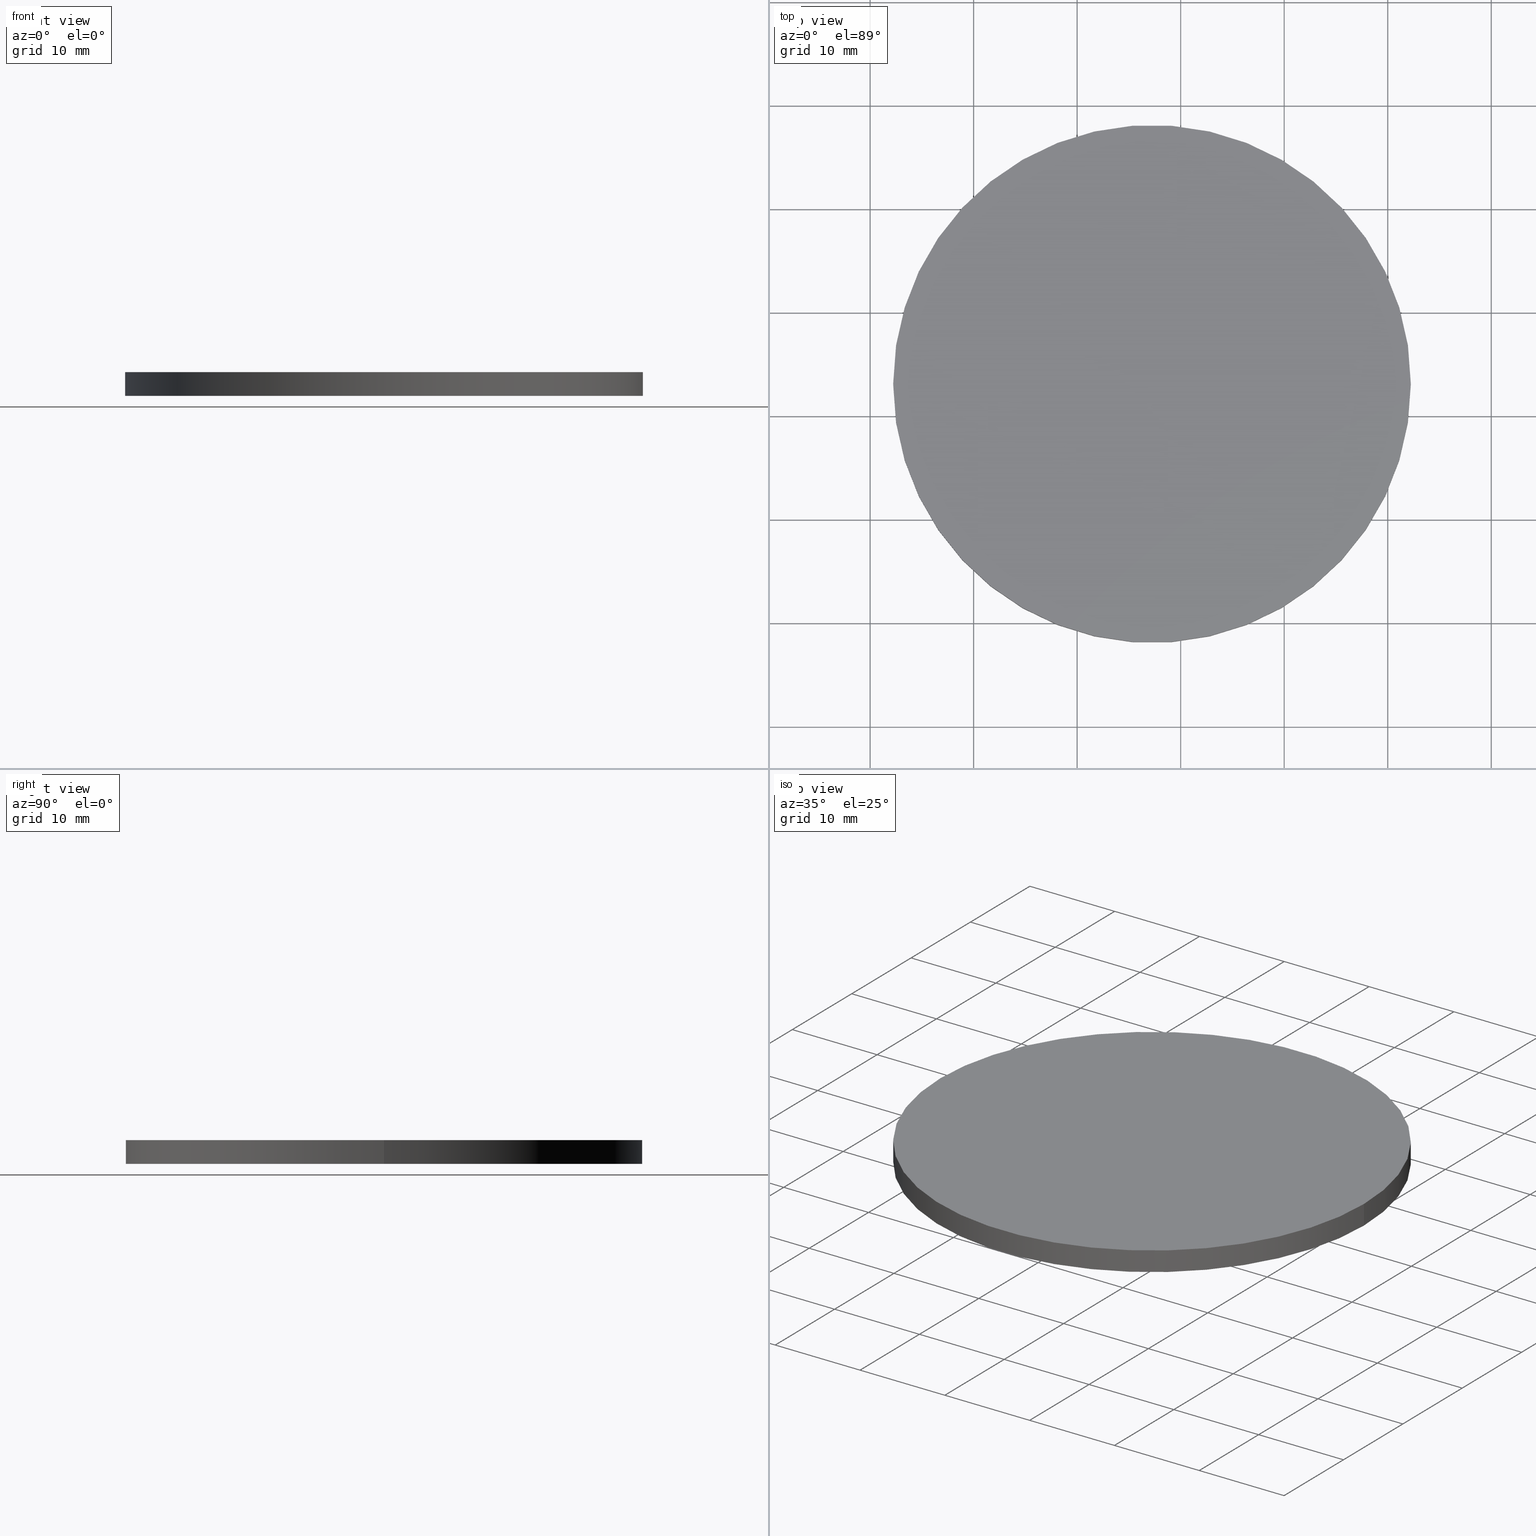
[diagram: canonical four-view strip — front | top / right | iso, engineering-drawing reading convention]
A machine part, canonical four-view strip (front | top / right | iso — engineering-drawing reading convention). The complete STEP part file that produces these views, byte-faithful:
ISO-10303-21;
HEADER;
FILE_DESCRIPTION (( 'STEP AP214' ),
    '1' );
FILE_NAME ('302523.STEP',
    '2019-08-13T06:49:07',
    ( '' ),
    ( '' ),
    'SwSTEP 2.0',
    'SolidWorks 2016',
    '' );
FILE_SCHEMA (( 'AUTOMOTIVE_DESIGN' ));
ENDSEC;

DATA;
#1 = SHAPE_DEFINITION_REPRESENTATION ( #125, #27 ) ;
#2 = ORIENTED_EDGE ( 'NONE', *, *, #131, .T. ) ;
#3 = ORIENTED_EDGE ( 'NONE', *, *, #105, .F. ) ;
#4 = CARTESIAN_POINT ( 'NONE',  ( 192.2299678845674000, 123.1264836690531900, 2.299999999999999800 ) ) ;
#5 = PRODUCT_RELATED_PRODUCT_CATEGORY ( 'part', '', ( #47 ) ) ;
#6 =( NAMED_UNIT ( * ) PLANE_ANGLE_UNIT ( ) SI_UNIT ( $, .RADIAN. ) );
#7 = FILL_AREA_STYLE_COLOUR ( '', #114 ) ;
#8 = DIRECTION ( 'NONE',  ( 0.0000000000000000000, 0.0000000000000000000, 1.000000000000000000 ) ) ;
#9 = AXIS2_PLACEMENT_3D ( 'NONE', #36, #18, #44 ) ;
#10 = FACE_OUTER_BOUND ( 'NONE', #85, .T. ) ;
#11 = ORIENTED_EDGE ( 'NONE', *, *, #105, .T. ) ;
#12 = MECHANICAL_DESIGN_GEOMETRIC_PRESENTATION_REPRESENTATION (  '', ( #97 ), #113 ) ;
#13 = CIRCLE ( 'NONE', #39, 24.99999999999999300 ) ;
#14 = DIRECTION ( 'NONE',  ( 0.0000000000000000000, 0.0000000000000000000, 1.000000000000000000 ) ) ;
#15 = EDGE_CURVE ( 'NONE', #74, #40, #112, .T. ) ;
#16 = DIRECTION ( 'NONE',  ( 1.000000000000000000, 0.0000000000000000000, 0.0000000000000000000 ) ) ;
#17 =( NAMED_UNIT ( * ) PLANE_ANGLE_UNIT ( ) SI_UNIT ( $, .RADIAN. ) );
#18 = DIRECTION ( 'NONE',  ( 0.0000000000000000000, 0.0000000000000000000, 1.000000000000000000 ) ) ;
#19 = SURFACE_STYLE_USAGE ( .BOTH. , #62 ) ;
#20 =( NAMED_UNIT ( * ) SI_UNIT ( $, .STERADIAN. ) SOLID_ANGLE_UNIT ( ) );
#21 = ADVANCED_FACE ( 'NONE', ( #92 ), #132, .T. ) ;
#22 = SURFACE_STYLE_FILL_AREA ( #70 ) ;
#23 = LINE ( 'NONE', #28, #81 ) ;
#24 = FACE_OUTER_BOUND ( 'NONE', #63, .T. ) ;
#25 =( GEOMETRIC_REPRESENTATION_CONTEXT ( 3 ) GLOBAL_UNCERTAINTY_ASSIGNED_CONTEXT ( ( #64 ) ) GLOBAL_UNIT_ASSIGNED_CONTEXT ( ( #58, #17, #20 ) ) REPRESENTATION_CONTEXT ( 'NONE', 'WORKASPACE' ) );
#26 = FACE_OUTER_BOUND ( 'NONE', #83, .T. ) ;
#27 = ADVANCED_BREP_SHAPE_REPRESENTATION ( '302523', ( #77, #75 ), #25 ) ;
#28 = CARTESIAN_POINT ( 'NONE',  ( 192.2299678845674000, 123.1264836690531900, 2.299999999999999800 ) ) ;
#29 = ORIENTED_EDGE ( 'NONE', *, *, #79, .T. ) ;
#30 = CARTESIAN_POINT ( 'NONE',  ( 217.2299678845674000, 123.1264836690531900, 2.299999999999999800 ) ) ;
#31 = CARTESIAN_POINT ( 'NONE',  ( 242.2299678845673700, 123.1264836690531900, 2.299999999999999800 ) ) ;
#32 = FILL_AREA_STYLE ('',( #90 ) ) ;
#33 = VERTEX_POINT ( 'NONE', #4 ) ;
#34 = CARTESIAN_POINT ( 'NONE',  ( 217.2299678845674000, 123.1264836690531900, 0.0000000000000000000 ) ) ;
#35 = APPLICATION_PROTOCOL_DEFINITION ( 'draft international standard', 'automotive_design', 1998, #82 ) ;
#36 = CARTESIAN_POINT ( 'NONE',  ( 217.2299678845674000, 123.1264836690531900, 2.299999999999999800 ) ) ;
#37 = CARTESIAN_POINT ( 'NONE',  ( 217.2299678845674000, 123.1264836690531900, 2.299999999999999800 ) ) ;
#38 = PRODUCT_CONTEXT ( 'NONE', #82, 'mechanical' ) ;
#39 = AXIS2_PLACEMENT_3D ( 'NONE', #120, #73, #59 ) ;
#40 = VERTEX_POINT ( 'NONE', #98 ) ;
#41 = EDGE_CURVE ( 'NONE', #33, #40, #23, .T. ) ;
#42 = DIRECTION ( 'NONE',  ( -1.000000000000000000, 0.0000000000000000000, 0.0000000000000000000 ) ) ;
#43 = CARTESIAN_POINT ( 'NONE',  ( 242.2299678845673700, 123.1264836690531900, 2.299999999999999800 ) ) ;
#44 = DIRECTION ( 'NONE',  ( 1.000000000000000000, 0.0000000000000000000, -0.0000000000000000000 ) ) ;
#45 = UNCERTAINTY_MEASURE_WITH_UNIT (LENGTH_MEASURE( 1.000000000000000100E-005 ), #48, 'distance_accuracy_value', 'NONE');
#46 = PLANE ( 'NONE',  #102 ) ;
#47 = PRODUCT ( '302523', '302523', '', ( #38 ) ) ;
#48 =( LENGTH_UNIT ( ) NAMED_UNIT ( * ) SI_UNIT ( .MILLI., .METRE. ) );
#49 = AXIS2_PLACEMENT_3D ( 'NONE', #37, #119, #93 ) ;
#50 = ADVANCED_FACE ( 'NONE', ( #26 ), #110, .T. ) ;
#51 = MECHANICAL_DESIGN_GEOMETRIC_PRESENTATION_REPRESENTATION (  '', ( #55 ), #60 ) ;
#52 = PRODUCT_DEFINITION_CONTEXT ( 'detailed design', #91, 'design' ) ;
#53 = UNCERTAINTY_MEASURE_WITH_UNIT (LENGTH_MEASURE( 1.000000000000000100E-005 ), #78, 'distance_accuracy_value', 'NONE');
#54 = LINE ( 'NONE', #31, #103 ) ;
#55 = STYLED_ITEM ( 'NONE', ( #96 ), #27 ) ;
#56 = DIRECTION ( 'NONE',  ( -1.000000000000000000, 0.0000000000000000000, 0.0000000000000000000 ) ) ;
#57 = ORIENTED_EDGE ( 'NONE', *, *, #15, .F. ) ;
#58 =( LENGTH_UNIT ( ) NAMED_UNIT ( * ) SI_UNIT ( .MILLI., .METRE. ) );
#59 = DIRECTION ( 'NONE',  ( 1.000000000000000000, 0.0000000000000000000, 0.0000000000000000000 ) ) ;
#60 =( GEOMETRIC_REPRESENTATION_CONTEXT ( 3 ) GLOBAL_UNCERTAINTY_ASSIGNED_CONTEXT ( ( #45 ) ) GLOBAL_UNIT_ASSIGNED_CONTEXT ( ( #48, #109, #61 ) ) REPRESENTATION_CONTEXT ( 'NONE', 'WORKASPACE' ) );
#61 =( NAMED_UNIT ( * ) SI_UNIT ( $, .STERADIAN. ) SOLID_ANGLE_UNIT ( ) );
#62 = SURFACE_SIDE_STYLE ('',( #22 ) ) ;
#63 = EDGE_LOOP ( 'NONE', ( #95, #2 ) ) ;
#64 = UNCERTAINTY_MEASURE_WITH_UNIT (LENGTH_MEASURE( 1.000000000000000100E-005 ), #58, 'distance_accuracy_value', 'NONE');
#65 = ORIENTED_EDGE ( 'NONE', *, *, #41, .T. ) ;
#66 = AXIS2_PLACEMENT_3D ( 'NONE', #99, #14, #16 ) ;
#67 = PRESENTATION_STYLE_ASSIGNMENT (( #133 ) ) ;
#68 = PRESENTATION_LAYER_ASSIGNMENT (  '', '', ( #55 ) ) ;
#69 = CARTESIAN_POINT ( 'NONE',  ( 0.0000000000000000000, 0.0000000000000000000, 0.0000000000000000000 ) ) ;
#70 = FILL_AREA_STYLE ('',( #7 ) ) ;
#71 = CARTESIAN_POINT ( 'NONE',  ( 217.2299678845674000, 123.1264836690531900, 2.299999999999999800 ) ) ;
#72 = CLOSED_SHELL ( 'NONE', ( #50, #21, #139, #136 ) ) ;
#73 = DIRECTION ( 'NONE',  ( 0.0000000000000000000, 0.0000000000000000000, 1.000000000000000000 ) ) ;
#74 = VERTEX_POINT ( 'NONE', #126 ) ;
#75 = AXIS2_PLACEMENT_3D ( 'NONE', #69, #8, #130 ) ;
#76 = AXIS2_PLACEMENT_3D ( 'NONE', #71, #135, #100 ) ;
#77 = MANIFOLD_SOLID_BREP ( '͹̨-����1', #72 ) ;
#78 =( LENGTH_UNIT ( ) NAMED_UNIT ( * ) SI_UNIT ( .MILLI., .METRE. ) );
#79 = EDGE_CURVE ( 'NONE', #134, #74, #54, .T. ) ;
#80 = DIRECTION ( 'NONE',  ( 1.000000000000000000, 0.0000000000000000000, -0.0000000000000000000 ) ) ;
#81 = VECTOR ( 'NONE', #87, 1000.000000000000000 ) ;
#82 = APPLICATION_CONTEXT ( 'automotive_design' ) ;
#83 = EDGE_LOOP ( 'NONE', ( #140, #29, #106, #116 ) ) ;
#84 = COLOUR_RGB ( '',1.000000000000000000, 1.000000000000000000, 1.000000000000000000 ) ;
#85 = EDGE_LOOP ( 'NONE', ( #3, #57 ) ) ;
#86 = AXIS2_PLACEMENT_3D ( 'NONE', #30, #117, #42 ) ;
#87 = DIRECTION ( 'NONE',  ( -0.0000000000000000000, -0.0000000000000000000, -1.000000000000000000 ) ) ;
#88 =( NAMED_UNIT ( * ) SI_UNIT ( $, .STERADIAN. ) SOLID_ANGLE_UNIT ( ) );
#89 = CARTESIAN_POINT ( 'NONE',  ( 217.2299678845674000, 123.1264836690531900, 2.299999999999999800 ) ) ;
#90 = FILL_AREA_STYLE_COLOUR ( '', #84 ) ;
#91 = APPLICATION_CONTEXT ( 'automotive_design' ) ;
#92 = FACE_OUTER_BOUND ( 'NONE', #115, .T. ) ;
#93 = DIRECTION ( 'NONE',  ( 1.000000000000000000, 0.0000000000000000000, 0.0000000000000000000 ) ) ;
#94 = AXIS2_PLACEMENT_3D ( 'NONE', #89, #107, #56 ) ;
#95 = ORIENTED_EDGE ( 'NONE', *, *, #111, .T. ) ;
#96 = PRESENTATION_STYLE_ASSIGNMENT (( #19 ) ) ;
#97 = STYLED_ITEM ( 'NONE', ( #67 ), #77 ) ;
#98 = CARTESIAN_POINT ( 'NONE',  ( 192.2299678845674000, 123.1264836690531900, 0.0000000000000000000 ) ) ;
#99 = CARTESIAN_POINT ( 'NONE',  ( 217.2299678845674000, 123.1264836690531900, 0.0000000000000000000 ) ) ;
#100 = DIRECTION ( 'NONE',  ( 1.000000000000000000, 0.0000000000000000000, 0.0000000000000000000 ) ) ;
#101 = APPLICATION_PROTOCOL_DEFINITION ( 'draft international standard', 'automotive_design', 1998, #91 ) ;
#102 = AXIS2_PLACEMENT_3D ( 'NONE', #34, #121, #80 ) ;
#103 = VECTOR ( 'NONE', #128, 1000.000000000000000 ) ;
#104 = CIRCLE ( 'NONE', #49, 24.99999999999999300 ) ;
#105 = EDGE_CURVE ( 'NONE', #40, #74, #13, .T. ) ;
#106 = ORIENTED_EDGE ( 'NONE', *, *, #15, .T. ) ;
#107 = DIRECTION ( 'NONE',  ( -0.0000000000000000000, -0.0000000000000000000, -1.000000000000000000 ) ) ;
#108 = PRODUCT_DEFINITION ( 'δ֪', '', #137, #52 ) ;
#109 =( NAMED_UNIT ( * ) PLANE_ANGLE_UNIT ( ) SI_UNIT ( $, .RADIAN. ) );
#110 = CYLINDRICAL_SURFACE ( 'NONE', #86, 24.99999999999999300 ) ;
#111 = EDGE_CURVE ( 'NONE', #33, #134, #127, .T. ) ;
#112 = CIRCLE ( 'NONE', #66, 24.99999999999999300 ) ;
#113 =( GEOMETRIC_REPRESENTATION_CONTEXT ( 3 ) GLOBAL_UNCERTAINTY_ASSIGNED_CONTEXT ( ( #53 ) ) GLOBAL_UNIT_ASSIGNED_CONTEXT ( ( #78, #6, #88 ) ) REPRESENTATION_CONTEXT ( 'NONE', 'WORKASPACE' ) );
#114 = COLOUR_RGB ( '',1.000000000000000000, 1.000000000000000000, 1.000000000000000000 ) ;
#115 = EDGE_LOOP ( 'NONE', ( #122, #129, #65, #11 ) ) ;
#116 = ORIENTED_EDGE ( 'NONE', *, *, #41, .F. ) ;
#117 = DIRECTION ( 'NONE',  ( -0.0000000000000000000, -0.0000000000000000000, -1.000000000000000000 ) ) ;
#118 = SURFACE_SIDE_STYLE ('',( #124 ) ) ;
#119 = DIRECTION ( 'NONE',  ( 0.0000000000000000000, 0.0000000000000000000, 1.000000000000000000 ) ) ;
#120 = CARTESIAN_POINT ( 'NONE',  ( 217.2299678845674000, 123.1264836690531900, 0.0000000000000000000 ) ) ;
#121 = DIRECTION ( 'NONE',  ( 0.0000000000000000000, 0.0000000000000000000, 1.000000000000000000 ) ) ;
#122 = ORIENTED_EDGE ( 'NONE', *, *, #79, .F. ) ;
#123 = PRESENTATION_LAYER_ASSIGNMENT (  '', '', ( #97 ) ) ;
#124 = SURFACE_STYLE_FILL_AREA ( #32 ) ;
#125 = PRODUCT_DEFINITION_SHAPE ( 'NONE', 'NONE',  #108 ) ;
#126 = CARTESIAN_POINT ( 'NONE',  ( 242.2299678845673700, 123.1264836690531900, 0.0000000000000000000 ) ) ;
#127 = CIRCLE ( 'NONE', #76, 24.99999999999999300 ) ;
#128 = DIRECTION ( 'NONE',  ( -0.0000000000000000000, -0.0000000000000000000, -1.000000000000000000 ) ) ;
#129 = ORIENTED_EDGE ( 'NONE', *, *, #111, .F. ) ;
#130 = DIRECTION ( 'NONE',  ( 1.000000000000000000, 0.0000000000000000000, 0.0000000000000000000 ) ) ;
#131 = EDGE_CURVE ( 'NONE', #134, #33, #104, .T. ) ;
#132 = CYLINDRICAL_SURFACE ( 'NONE', #94, 24.99999999999999300 ) ;
#133 = SURFACE_STYLE_USAGE ( .BOTH. , #118 ) ;
#134 = VERTEX_POINT ( 'NONE', #43 ) ;
#135 = DIRECTION ( 'NONE',  ( 0.0000000000000000000, 0.0000000000000000000, 1.000000000000000000 ) ) ;
#136 = ADVANCED_FACE ( 'NONE', ( #10 ), #46, .F. ) ;
#137 = PRODUCT_DEFINITION_FORMATION_WITH_SPECIFIED_SOURCE ( '�κ�', '', #47, .NOT_KNOWN. ) ;
#138 = PLANE ( 'NONE',  #9 ) ;
#139 = ADVANCED_FACE ( 'NONE', ( #24 ), #138, .T. ) ;
#140 = ORIENTED_EDGE ( 'NONE', *, *, #131, .F. ) ;
ENDSEC;
END-ISO-10303-21;
